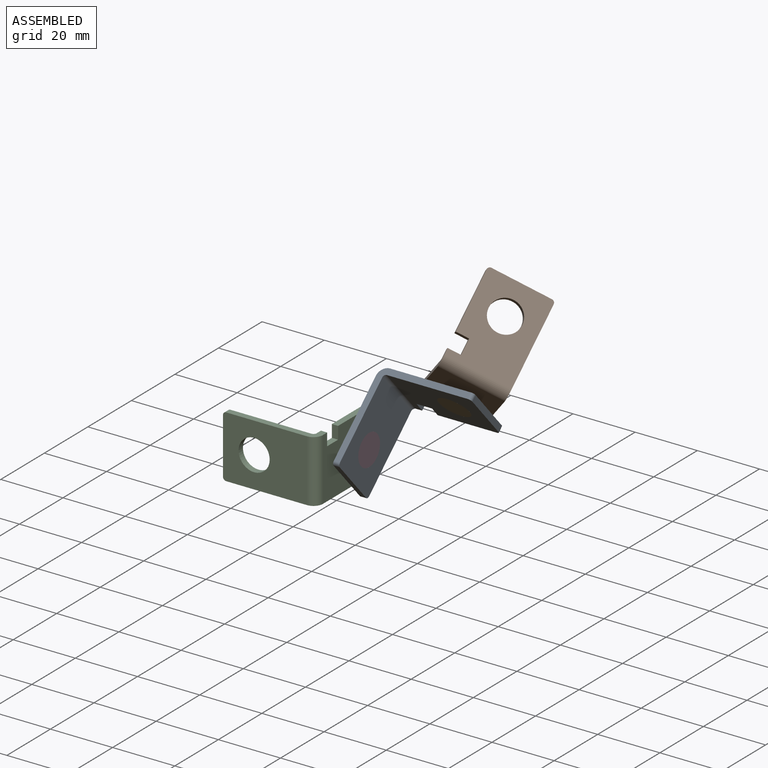
[diagram: assembled view]
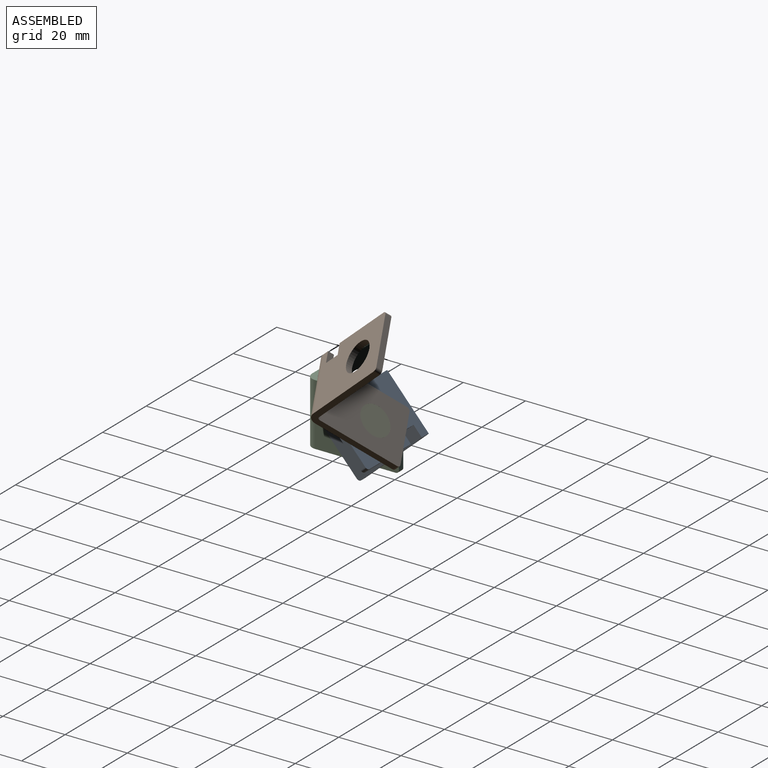
[diagram: assembled view, second angle]
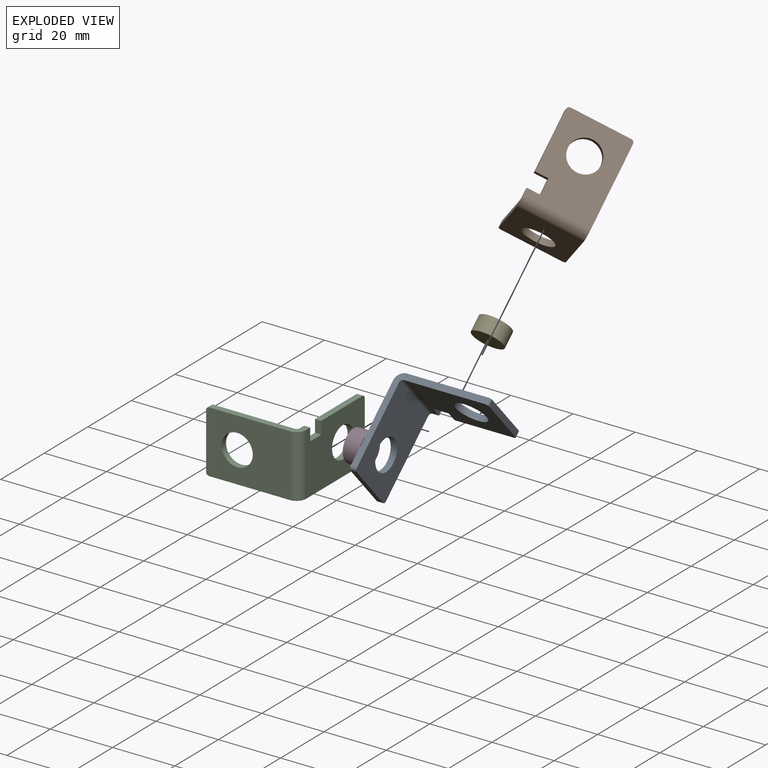
[diagram: exploded view]
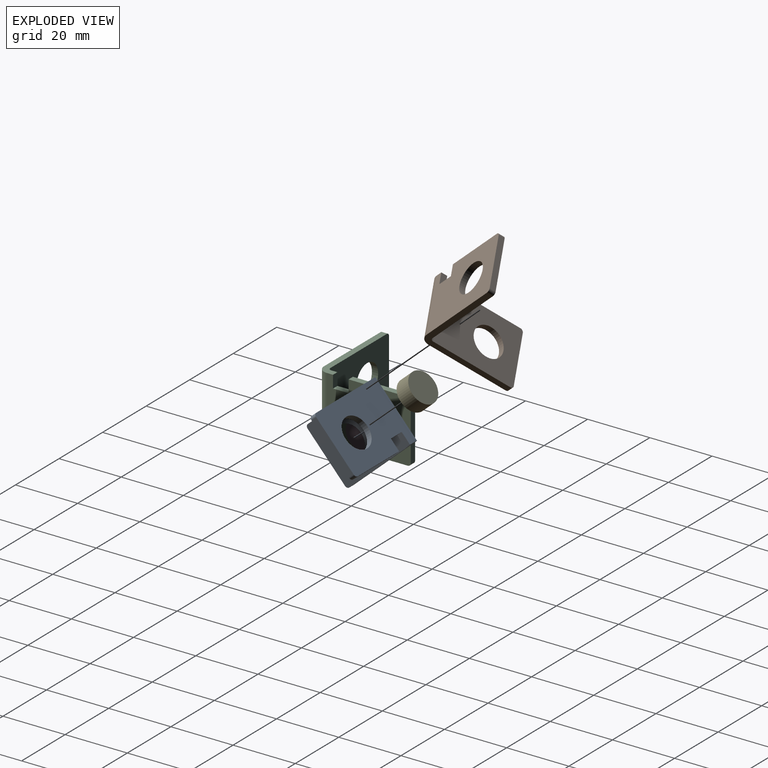
[diagram: exploded view, second angle]
ASSEMBLY  parts=5 mates=6
PART A: 20 faces, bbox 30x20x30 mm
  f0: plane 29x5mm, normal (0,-1,0), area 62.3mm2, adj f1,f5,f6,f7,f11,f15,f16,f19
  f1: plane 27x20mm, normal (1,0,0), area 441mm2, adj f0,f2,f4,f8,f10,f11,f12,f13
  f2: plane 29x29mm, normal (0,1,0), area 110.3mm2, adj f1,f5,f6,f7,f11,f13,f14,f19
  f3: plane 18x2mm, normal (-1,0,0), area 36mm2, adj f5,f6,f14,f15
  f4: plane 19x2mm, normal (0,-1,0), area 38mm2, adj f1,f7,f12,f17
  f5: plane 27x20mm, normal (0,0,1), area 461mm2, adj f0,f2,f3,f9,f14,f15,f19
  f6: plane 27x20mm, normal (0,0,-1), area 461mm2, adj f0,f2,f3,f9,f11,f14,f15
  f7: plane 27x20mm, normal (-1,0,0), area 441mm2, adj f0,f2,f4,f8,f10,f12,f13,f16
  f8: plane 18x2mm, normal (0,0,1), area 36mm2, adj f1,f7,f12,f13
  f9: cylinder r=5mm len=10mm, axis (0,0,1), area 62.8mm2, adj f5,f6
  f10: cylinder r=5mm len=10mm, axis (-1,0,0), area 62.8mm2, adj f1,f7
  f11: cylinder r=3mm len=20mm, axis (0,1,0), area 94.2mm2, adj f0,f1,f2,f6
  f12: cylinder r=1mm len=2mm, axis (-1,0,0), area 3.1mm2, adj f1,f4,f7,f8
  f13: cylinder r=1mm len=2mm, axis (1,0,0), area 3.1mm2, adj f1,f2,f7,f8
  f14: cylinder r=1mm len=2mm, axis (0,0,1), area 3.1mm2, adj f2,f3,f5,f6
  f15: cylinder r=1mm len=2mm, axis (0,0,-1), area 3.1mm2, adj f0,f3,f5,f6
  f16: plane 4x2mm, normal (0,0,1), area 8mm2, adj f0,f1,f7,f18
  f17: plane 4x2mm, normal (0,0,-1), area 8mm2, adj f1,f4,f7,f18
  f18: plane 5x2mm, normal (0,-1,0), area 10mm2, adj f1,f7,f16,f17
  f19: cylinder r=1mm len=20mm, axis (0,-1,0), area 31.4mm2, adj f0,f2,f5,f7
PART B: same geometry as A
PART C: same geometry as A
PART D: 3 faces, bbox 10x5x10 mm
  f0: cylinder r=5mm len=10mm, axis (0,1,0), area 157.1mm2, adj f1,f2
  f1: plane 10x10mm, normal (0,-1,0), area 78.5mm2, adj f0
  f2: plane 10x10mm, normal (0,1,0), area 78.5mm2, adj f0
PART E: same geometry as D
PLACE A rot(axis=(0.67,0.3,0.67),146.5deg) t=(30.5,23.72,12.84)mm
PLACE B rot(axis=(-0.63,-0.32,-0.71),70.6deg) t=(53.49,32.97,26.5)mm
PLACE C rot(axis=(-1,0,0),90deg) t=(14.5,0,9.5)mm
PLACE D rot(axis=(0.49,0.49,-0.73),108deg) t=(32.5,20,9.5)mm
PLACE E rot(axis=(0.16,0.92,0.35),135.1deg) t=(50.5,37.13,24.85)mm
MATE cylindrical D.f0 <-> A.f9  axis (1,0,0) through (32.5,20,9.5)mm
MATE cylindrical D.f0 <-> C.f10  axis (-1,0,0) through (27.5,20,9.5)mm
MATE revolute D.f0 <-> A.f9  axis (1,0,0) through (32.5,20,9.5)mm
MATE revolute E.f0 <-> B.f9  axis (0,0.74,0.67) through (50.5,37.13,24.85)mm
MATE revolute C.f10 <-> D.f0  axis (-1,0,0) through (27.5,20,9.5)mm
MATE revolute E.f0 <-> A.f10  axis (0,-0.74,-0.67) through (50.5,33.4,21.51)mm
